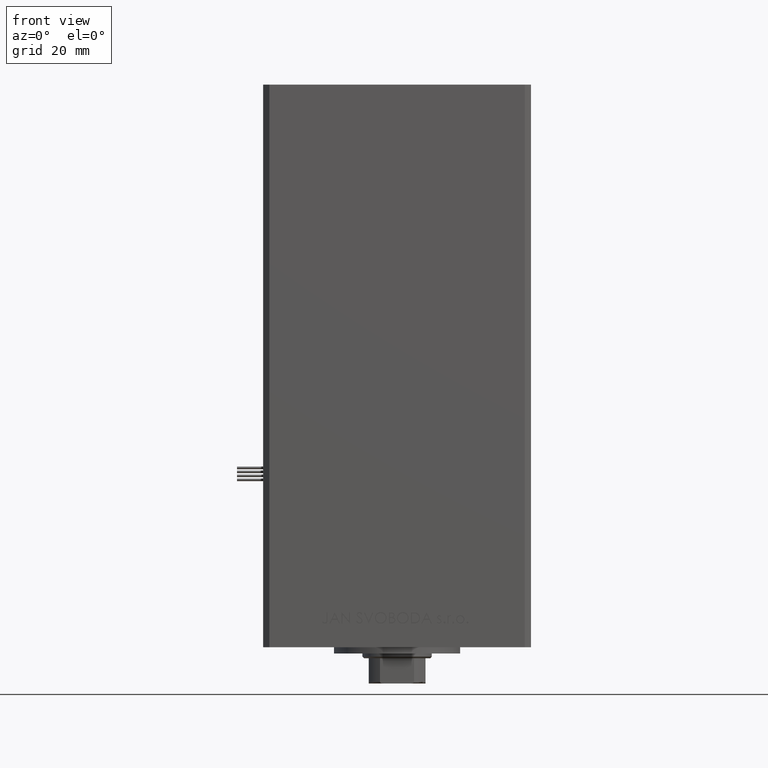
[diagram: clean part render]
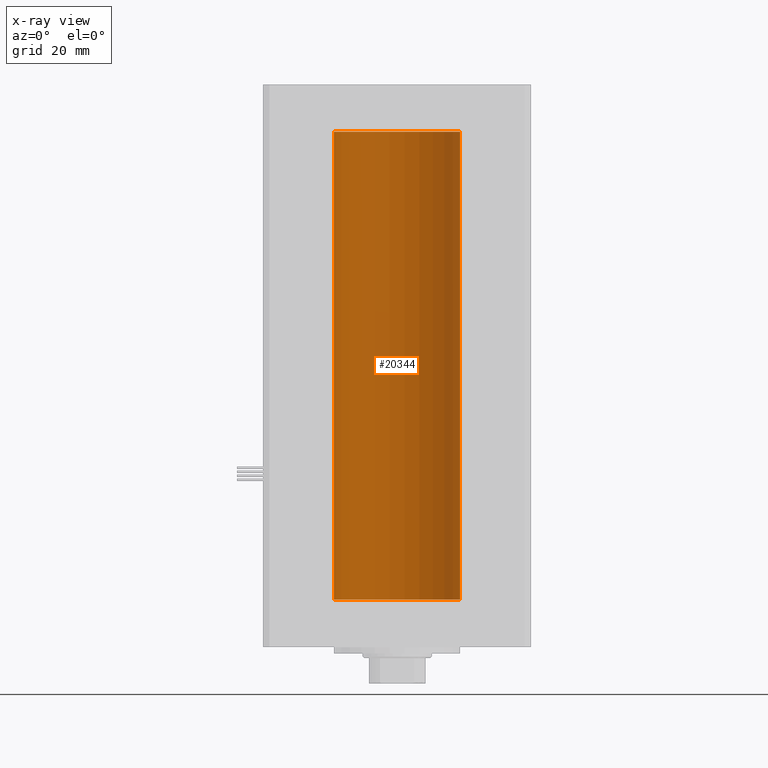
[diagram: x-ray — body ghosted, one internal face saturated and labeled with its STEP entity id]
A machine part, front view, then the same camera in x-ray: the body is ghosted and one INTERNAL B-rep face — a face not visible from any outside direction — is saturated and labeled: STEP entity #20344.
In plain terms, the highlighted cylindrical surface (partial cylindrical patch) has radius 20 mm, axis along (-0, -0, -1).
Its self-contained STEP definition (entity closure, byte-faithful):
#50 = VECTOR ( 'NONE', #9849, 1000.000000000000000 ) ;
#395 = CARTESIAN_POINT ( 'NONE',  ( 0.000000000000000000, 0.000000000000000000, 148.5000000000000000 ) ) ;
#3923 = CARTESIAN_POINT ( 'NONE',  ( -20.00000000000000000, 0.000000000000000000, 148.5000000000000000 ) ) ;
#5146 = DIRECTION ( 'NONE',  ( -1.000000000000000000, 0.000000000000000000, 0.000000000000000000 ) ) ;
#5817 = ORIENTED_EDGE ( 'NONE', *, *, #27587, .T. ) ;
#6056 = CARTESIAN_POINT ( 'NONE',  ( 0.000000000000000000, 0.000000000000000000, 148.5000000000000000 ) ) ;
#9236 = CARTESIAN_POINT ( 'NONE',  ( 20.00000000000000000, 2.449293598294706513E-15, 0.000000000000000000 ) ) ;
#9849 = DIRECTION ( 'NONE',  ( -0.000000000000000000, -0.000000000000000000, -1.000000000000000000 ) ) ;
#11807 = EDGE_CURVE ( 'NONE', #17066, #14657, #13047, .T. ) ;
#13047 = LINE ( 'NONE', #25944, #50 ) ;
#13557 = CIRCLE ( 'NONE', #37170, 20.00000000000000000 ) ;
#14657 = VERTEX_POINT ( 'NONE', #9236 ) ;
#14675 = ORIENTED_EDGE ( 'NONE', *, *, #40994, .F. ) ;
#15303 = CARTESIAN_POINT ( 'NONE',  ( -20.00000000000000000, 0.000000000000000000, 148.5000000000000000 ) ) ;
#16329 = LINE ( 'NONE', #3923, #19124 ) ;
#17066 = VERTEX_POINT ( 'NONE', #43479 ) ;
#18896 = CARTESIAN_POINT ( 'NONE',  ( -20.00000000000000000, 0.000000000000000000, 0.000000000000000000 ) ) ;
#19124 = VECTOR ( 'NONE', #20030, 1000.000000000000000 ) ;
#19504 = EDGE_CURVE ( 'NONE', #44457, #35241, #16329, .T. ) ;
#20030 = DIRECTION ( 'NONE',  ( -0.000000000000000000, -0.000000000000000000, -1.000000000000000000 ) ) ;
#20261 = ORIENTED_EDGE ( 'NONE', *, *, #19504, .T. ) ;
#20344 = ADVANCED_FACE ( 'NONE', ( #25188 ), #52166, .F. ) ;
#20934 = DIRECTION ( 'NONE',  ( 1.000000000000000000, 0.000000000000000000, 0.000000000000000000 ) ) ;
#21827 = AXIS2_PLACEMENT_3D ( 'NONE', #6056, #26102, #42731 ) ;
#24366 = CARTESIAN_POINT ( 'NONE',  ( 0.000000000000000000, 0.000000000000000000, 0.000000000000000000 ) ) ;
#25188 = FACE_OUTER_BOUND ( 'NONE', #38688, .T. ) ;
#25944 = CARTESIAN_POINT ( 'NONE',  ( 20.00000000000000000, 2.449293598294706513E-15, 148.5000000000000000 ) ) ;
#26102 = DIRECTION ( 'NONE',  ( -0.000000000000000000, 0.000000000000000000, 1.000000000000000000 ) ) ;
#27587 = EDGE_CURVE ( 'NONE', #17066, #44457, #51356, .T. ) ;
#32078 = DIRECTION ( 'NONE',  ( -0.000000000000000000, -0.000000000000000000, -1.000000000000000000 ) ) ;
#35241 = VERTEX_POINT ( 'NONE', #18896 ) ;
#37170 = AXIS2_PLACEMENT_3D ( 'NONE', #24366, #49189, #20934 ) ;
#38415 = AXIS2_PLACEMENT_3D ( 'NONE', #395, #32078, #5146 ) ;
#38688 = EDGE_LOOP ( 'NONE', ( #45549, #5817, #20261, #14675 ) ) ;
#40994 = EDGE_CURVE ( 'NONE', #14657, #35241, #13557, .T. ) ;
#42731 = DIRECTION ( 'NONE',  ( 1.000000000000000000, 0.000000000000000000, 0.000000000000000000 ) ) ;
#43479 = CARTESIAN_POINT ( 'NONE',  ( 20.00000000000000000, 2.449293598294706513E-15, 148.5000000000000000 ) ) ;
#44457 = VERTEX_POINT ( 'NONE', #15303 ) ;
#45549 = ORIENTED_EDGE ( 'NONE', *, *, #11807, .F. ) ;
#49189 = DIRECTION ( 'NONE',  ( -0.000000000000000000, 0.000000000000000000, 1.000000000000000000 ) ) ;
#51356 = CIRCLE ( 'NONE', #21827, 20.00000000000000000 ) ;
#52166 = CYLINDRICAL_SURFACE ( 'NONE', #38415, 20.00000000000000000 ) ;